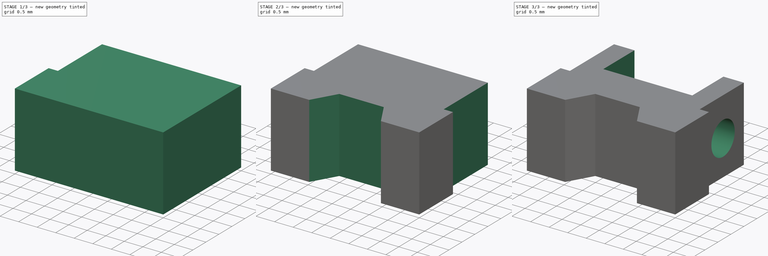
[diagram: build sequence overview — one tinted view per stage of 3, left to right]
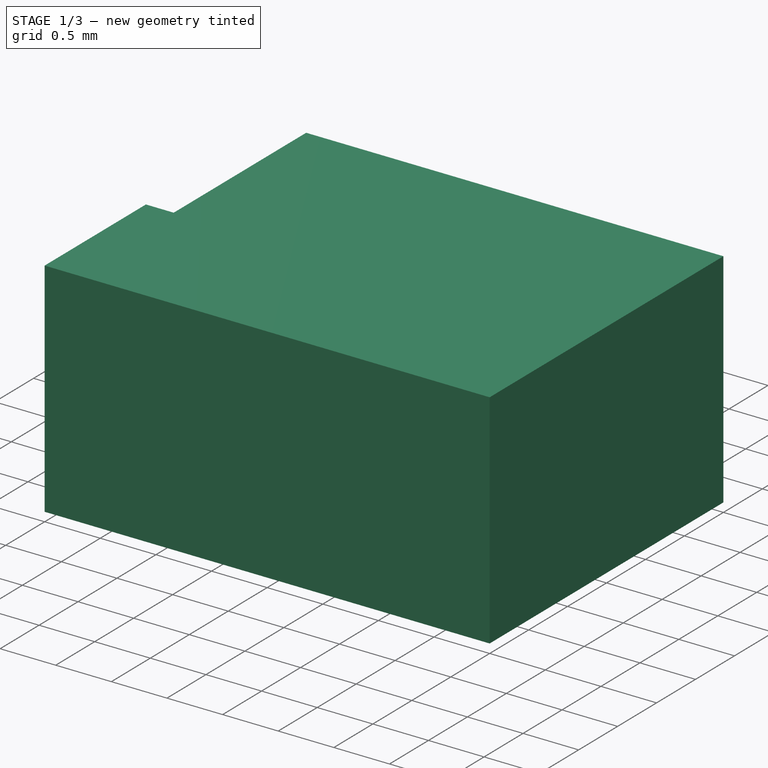
[diagram: stage 1 of 3 — iso view after this stage's code; geometry added in this stage tinted green]
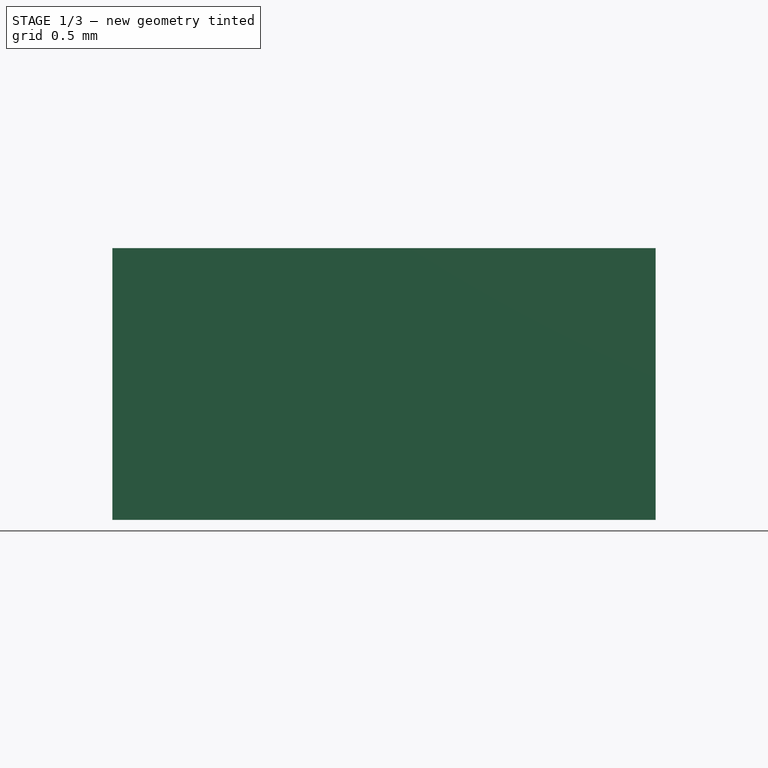
[diagram: stage 1 of 3 — front view after this stage's code; geometry added in this stage tinted green]
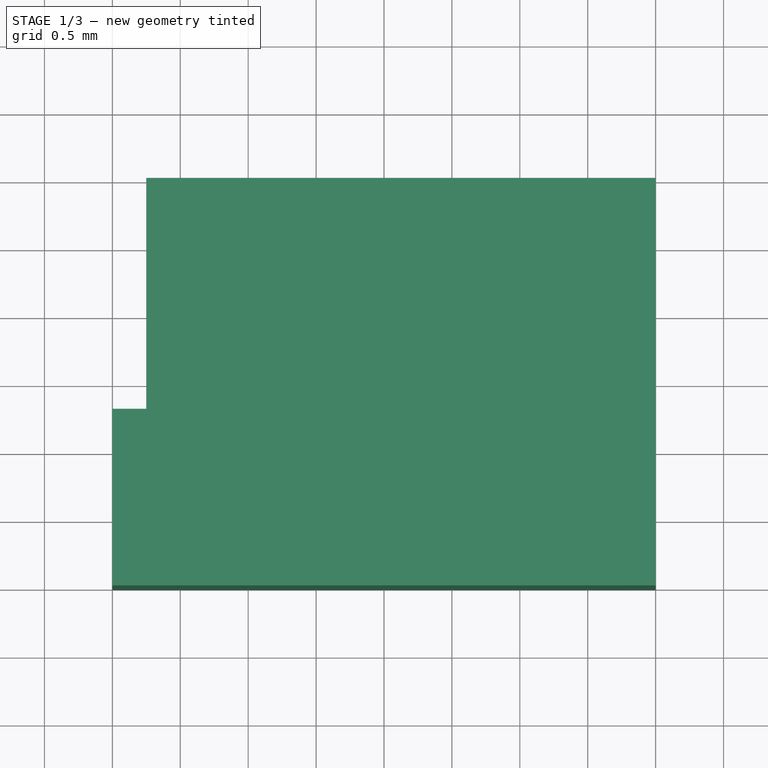
[diagram: stage 1 of 3 — top view after this stage's code; geometry added in this stage tinted green]
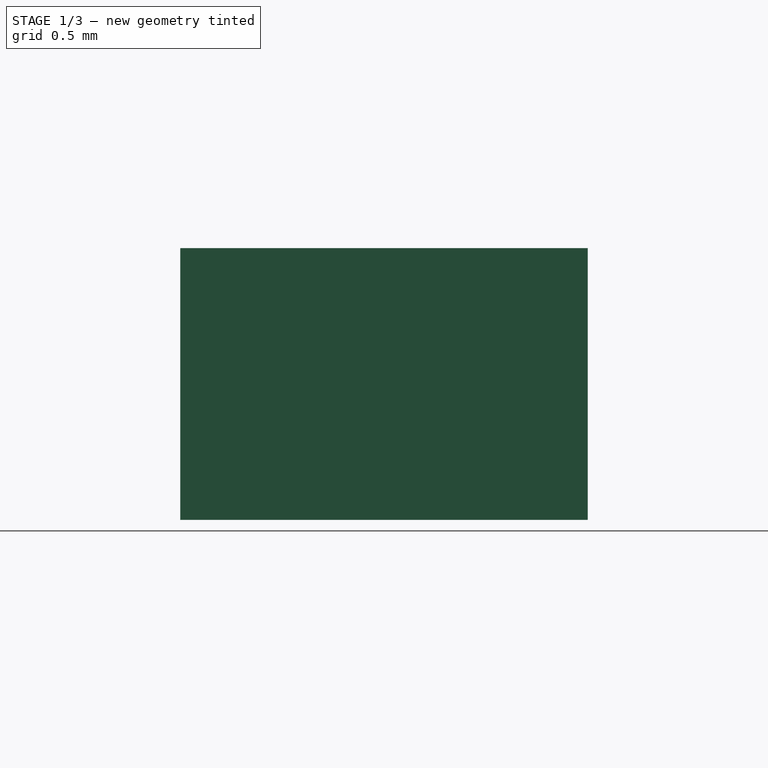
[diagram: stage 1 of 3 — right view after this stage's code; geometry added in this stage tinted green]
FCSTD DOCUMENT  (FreeCAD 0.17R13528 (Git))
Label: übungsgglbildersuchecadübungen
License: All rights reserved
LicenseURL: http://en.wikipedia.org/wiki/All_rights_reserved
objects: Sketcher::SketchObject×5, PartDesign::Pocket×4, PartDesign::AdditiveBox×1, PartDesign::SubtractivePrism×1, PartDesign::SubtractiveBox×1, PartDesign::Body×1
note: 20 computed .brp shape members not serialized (recipe doc carries the construction recipe); baked Part::Feature solids carry a one-line shape summary decoded from their .brp

FEATURE [PartDesign::AdditiveBox] Box
  AttacherType = Attacher::AttachEngine3D
  Height = 2
  Length = 4
  MapMode = 5
  Support = -> [XY_Plane]
  Width = 3
FEATURE [Sketcher::SketchObject] Sketch
  MapMode = 5
  Placement = pos=(0,0,0) rot=(0.57735,0.57735,0.57735;2.0944rad)
  Support = -> [YZ_Plane]
  sketch-geometry (4):
    g0: LineSegment StartX=1.3 StartY=0 StartZ=0 EndX=3 EndY=0 EndZ=0
    g1: LineSegment StartX=3 StartY=0 StartZ=0 EndX=3 EndY=2 EndZ=0
    g2: LineSegment StartX=3 StartY=2 StartZ=0 EndX=1.3 EndY=2 EndZ=0
    g3: LineSegment StartX=1.3 StartY=2 StartZ=0 EndX=1.3 EndY=0 EndZ=0
  constraints (12):
    c: Coincident(g0,g1)
    c: Coincident(g1,g2)
    c: Coincident(g2,g3)
    c: Coincident(g3,g0)
    c: Horizontal(g0)
    c: Horizontal(g2)
    c: Vertical(g1)
    c: Vertical(g3)
    c: DistanceX(g2,g2) = 1.7
    c: DistanceY(g3,g3) = 2
    c: DistanceX(g-1,g0) = 1.3
    c: DistanceY(g0) = 0
FEATURE [PartDesign::Pocket] Pocket
  BaseFeature = -> Box
  Length = 0.5
  Length2 = 100
  Midplane = true
  Profile = -> Sketch
  Type = 0
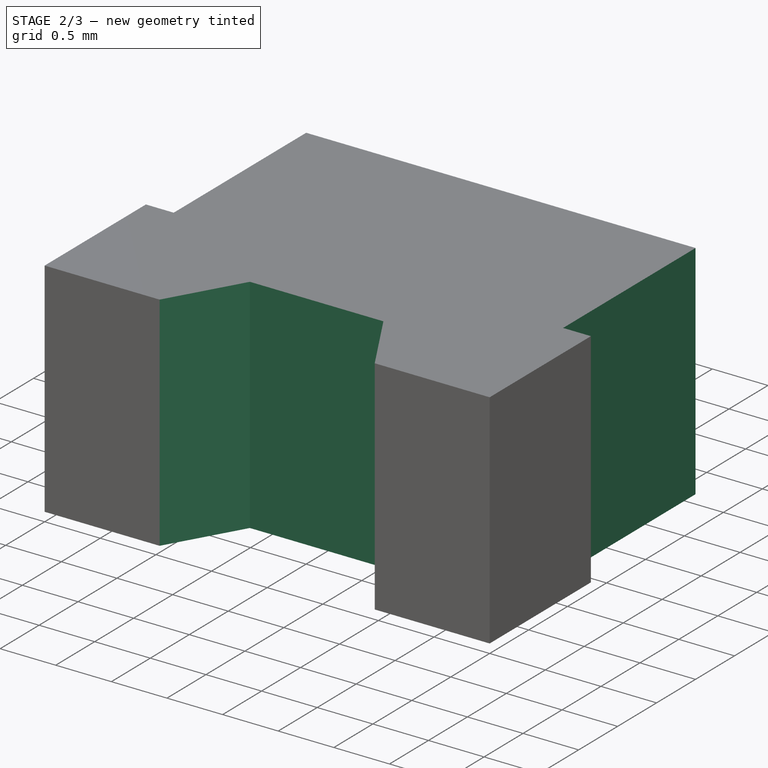
[diagram: stage 2 of 3 — iso view after this stage's code; geometry added in this stage tinted green]
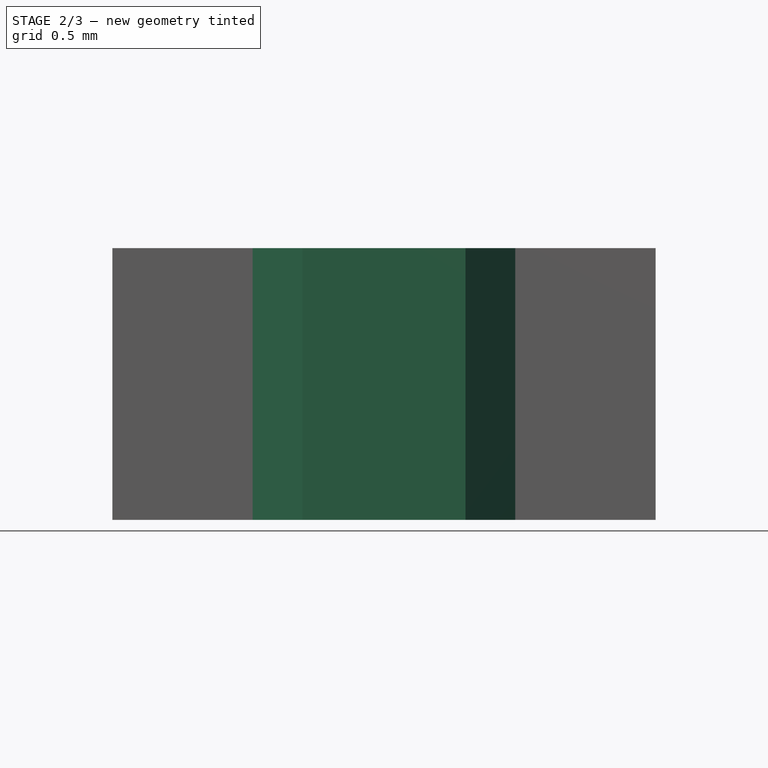
[diagram: stage 2 of 3 — front view after this stage's code; geometry added in this stage tinted green]
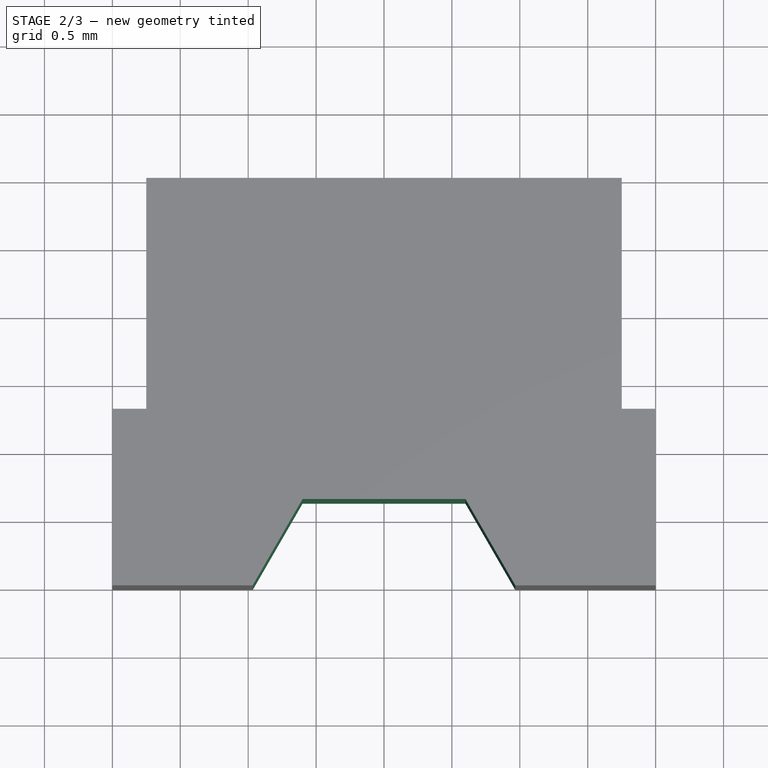
[diagram: stage 2 of 3 — top view after this stage's code; geometry added in this stage tinted green]
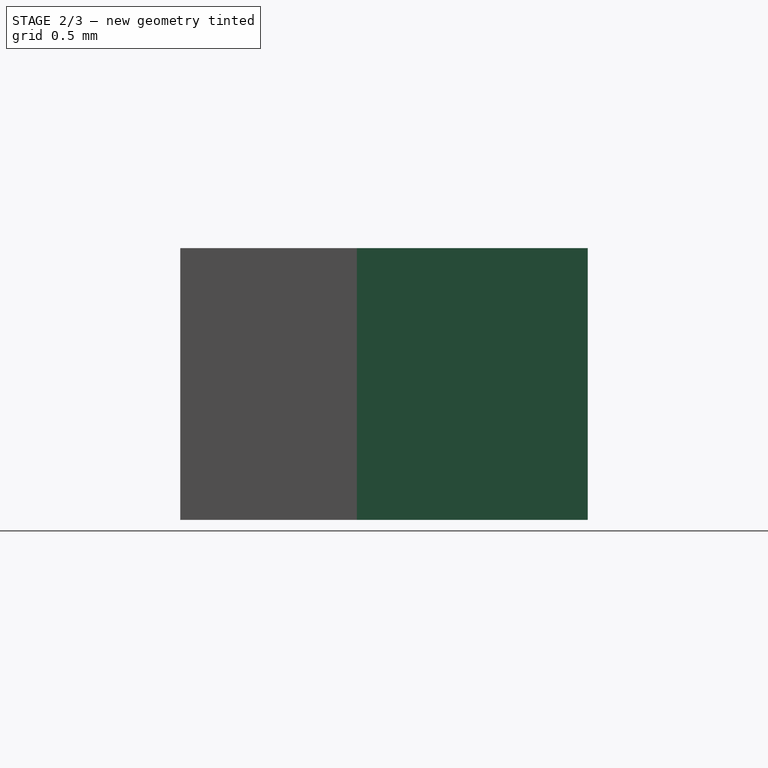
[diagram: stage 2 of 3 — right view after this stage's code; geometry added in this stage tinted green]
FEATURE [Sketcher::SketchObject] Sketch001
  MapMode = 5
  Placement = pos=(4,0,0) rot=(0.57735,0.57735,0.57735;2.0944rad)
  Support = -> [Pocket]
  sketch-geometry (4):
    g0: LineSegment StartX=1.3 StartY=2 StartZ=0 EndX=3 EndY=2 EndZ=0
    g1: LineSegment StartX=3 StartY=2 StartZ=0 EndX=3 EndY=0 EndZ=0
    g2: LineSegment StartX=3 StartY=0 StartZ=0 EndX=1.3 EndY=0 EndZ=0
    g3: LineSegment StartX=1.3 StartY=0 StartZ=0 EndX=1.3 EndY=2 EndZ=0
  constraints (12):
    c: Coincident(g0,g1)
    c: Coincident(g1,g2)
    c: Coincident(g2,g3)
    c: Coincident(g3,g0)
    c: Horizontal(g0)
    c: Horizontal(g2)
    c: Vertical(g1)
    c: Vertical(g3)
    c: DistanceX(g0,g0) = 1.7
    c: DistanceY(g3,g3) = 2
    c: DistanceY(g-1,g1) = 0
    c: DistanceX(g-1,g2) = 1.3
FEATURE [PartDesign::Pocket] Pocket001
  BaseFeature = -> Pocket
  Length = 0.5
  Length2 = 100
  Midplane = true
  Profile = -> Sketch001
  Type = 0
FEATURE [Sketcher::SketchObject] Sketch002
  MapMode = 5
  Support = -> [XY_Plane]
FEATURE [PartDesign::SubtractivePrism] Prism
  AttacherType = Attacher::AttachEngine3D
  AttachmentOffset = pos=(2,0.40392,-2) rot=(0,0,1;0rad)
  BaseFeature = -> Pocket001
  Circumradius = 1.2
  Height = 2
  MapMode = 5
  Placement = pos=(2,-0.40392,2) rot=(1,0,0;3.14159rad)
  Polygon = 6
  Support = -> [Pocket001]
FEATURE [Sketcher::SketchObject] Sketch003
  MapMode = 5
  Placement = pos=(3.75,-0.40392,2) rot=(0.57735,-0.57735,0.57735;4.18879rad)
  Support = -> [Prism]
  sketch-geometry (1):
    g0: Circle CenterX=2.15 CenterY=1 CenterZ=0 NormalX=0 NormalY=0 NormalZ=1 AngleXU=0 Radius=0.45
  constraints (3):
    c: Radius(g0) = 0.45
    c: DistanceX(g-1,g0) = 2.15
    c: DistanceY(g-1,g0) = 1
FEATURE [PartDesign::Pocket] Pocket002
  BaseFeature = -> Prism
  Length = 5
  Length2 = 100
  Placement = pos=(2,-0.40392,2) rot=(1,0,0;3.14159rad)
  Profile = -> Sketch003
  Type = 0
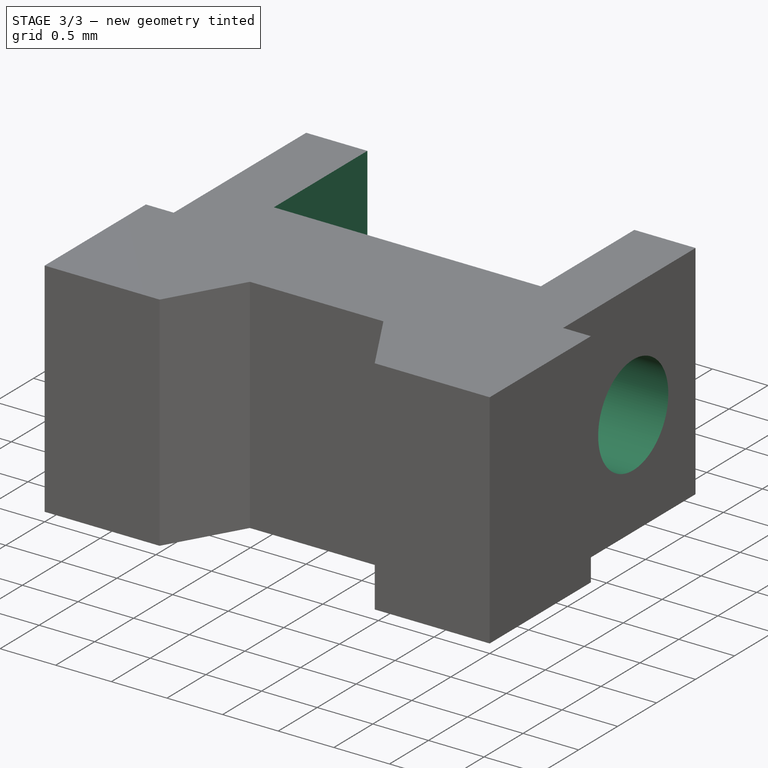
[diagram: stage 3 of 3 — iso view after this stage's code; geometry added in this stage tinted green]
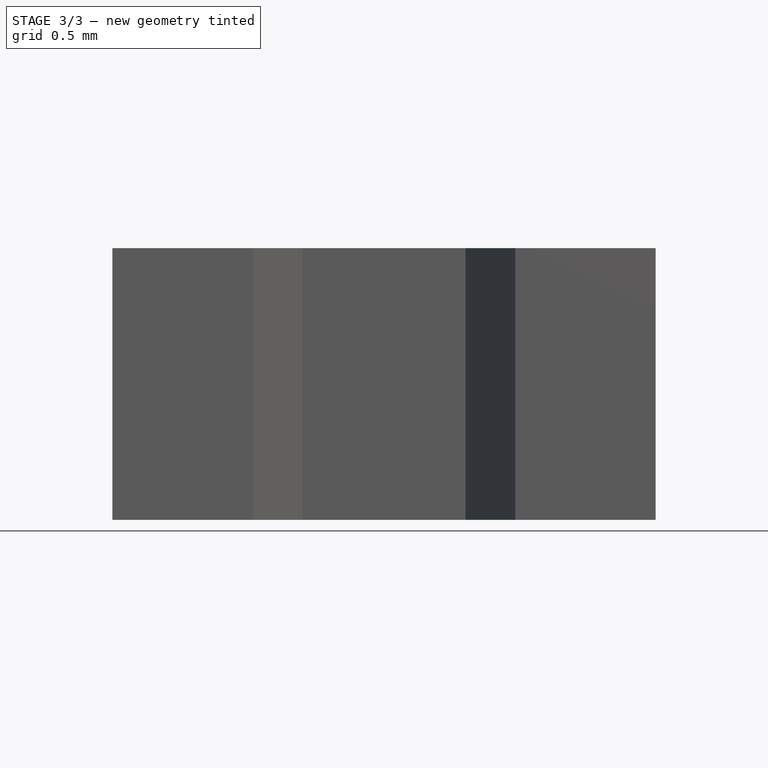
[diagram: stage 3 of 3 — front view after this stage's code; geometry added in this stage tinted green]
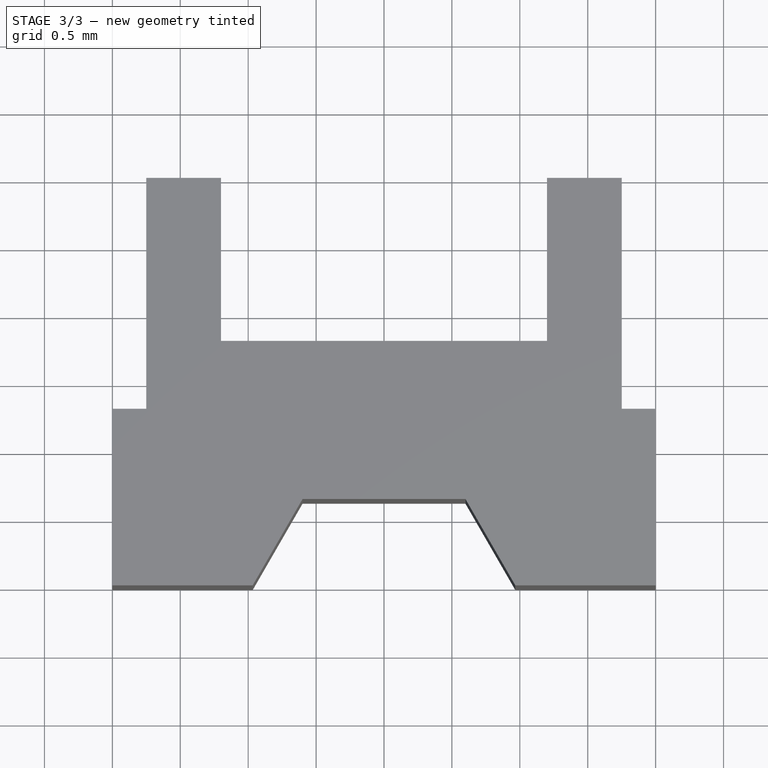
[diagram: stage 3 of 3 — top view after this stage's code; geometry added in this stage tinted green]
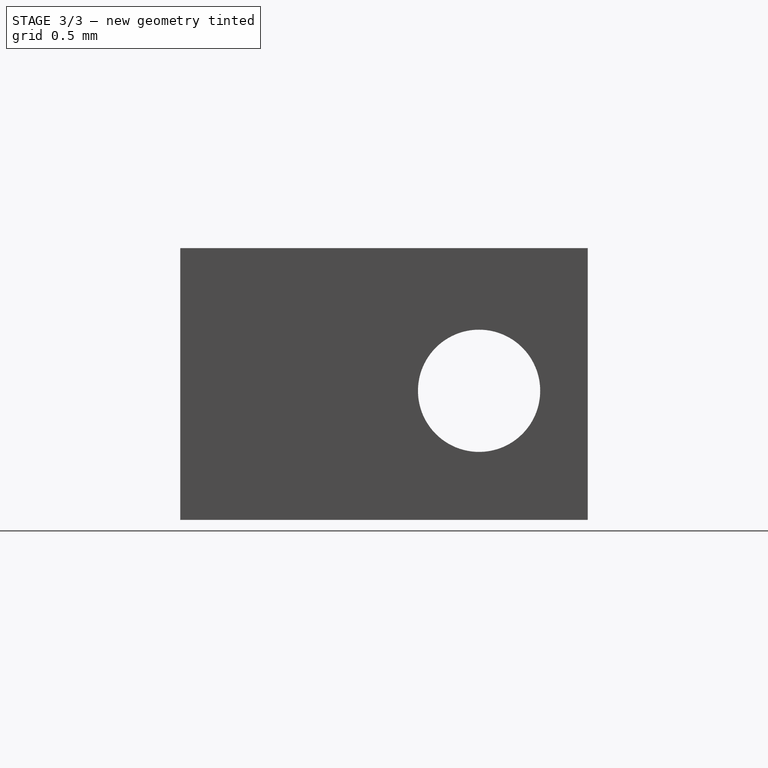
[diagram: stage 3 of 3 — right view after this stage's code; geometry added in this stage tinted green]
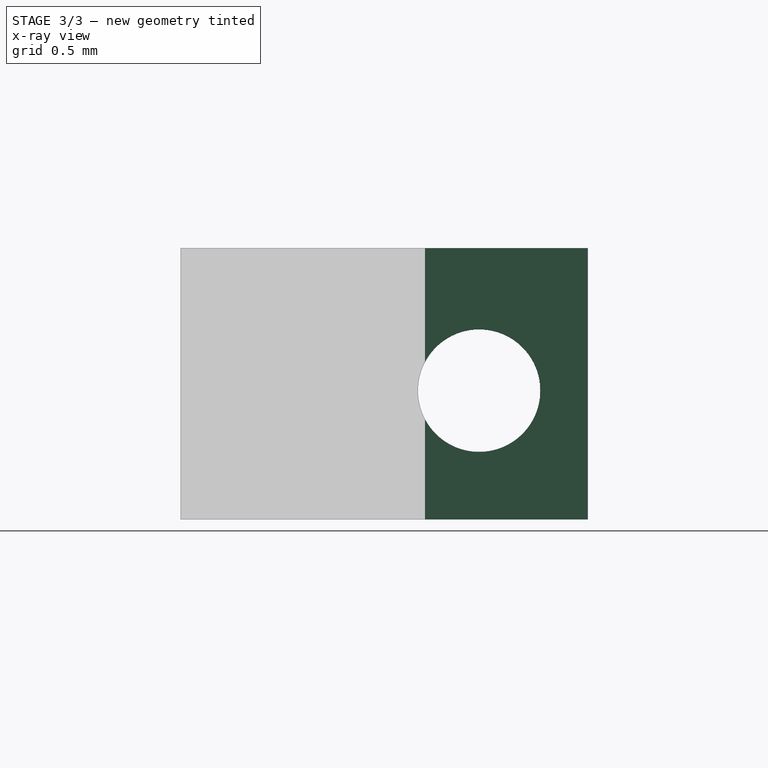
[diagram: stage 3 of 3 — x-ray composite at the right view; earlier geometry ghosted, this stage's added geometry solid]
FEATURE [PartDesign::SubtractiveBox] Box001
  AttacherType = Attacher::AttachEngine3D
  AttachmentOffset = pos=(0.8,1.8,0) rot=(0,0,1;0rad)
  BaseFeature = -> Pocket002
  Height = 2
  Length = 2.4
  MapMode = 5
  Placement = pos=(0.8,1.8,0) rot=(0,0,1;0rad)
  Support = -> [XY_Plane]
  Width = 1.2
FEATURE [Sketcher::SketchObject] Sketch004
  MapMode = 5
  Placement = pos=(0,0,0) rot=(0.57735,0.57735,0.57735;2.0944rad)
  Support = -> [YZ_Plane]
  sketch-geometry (1):
    g0: Circle CenterX=2.2 CenterY=0.95 CenterZ=0 NormalX=0 NormalY=0 NormalZ=1 AngleXU=0 Radius=0.45
  constraints (3):
    c: Radius(g0) = 0.45
    c: DistanceY(g-1,g0) = 0.95
    c: DistanceX(g-1,g0) = 2.2
FEATURE [PartDesign::Pocket] Pocket003
  BaseFeature = -> Box001
  Length = 5
  Length2 = 100
  Midplane = true
  Placement = pos=(0.8,1.8,0) rot=(0,0,1;0rad)
  Profile = -> Sketch004
  Type = 1
FEATURE [PartDesign::Body] Body
  Group = -> [Box,Sketch,Pocket,Sketch001,Pocket001,Sketch002,Prism,Sketch003,Pocket002,Box001,Sketch004,Pocket003]
  Origin = -> Origin
  Tip = -> Pocket003
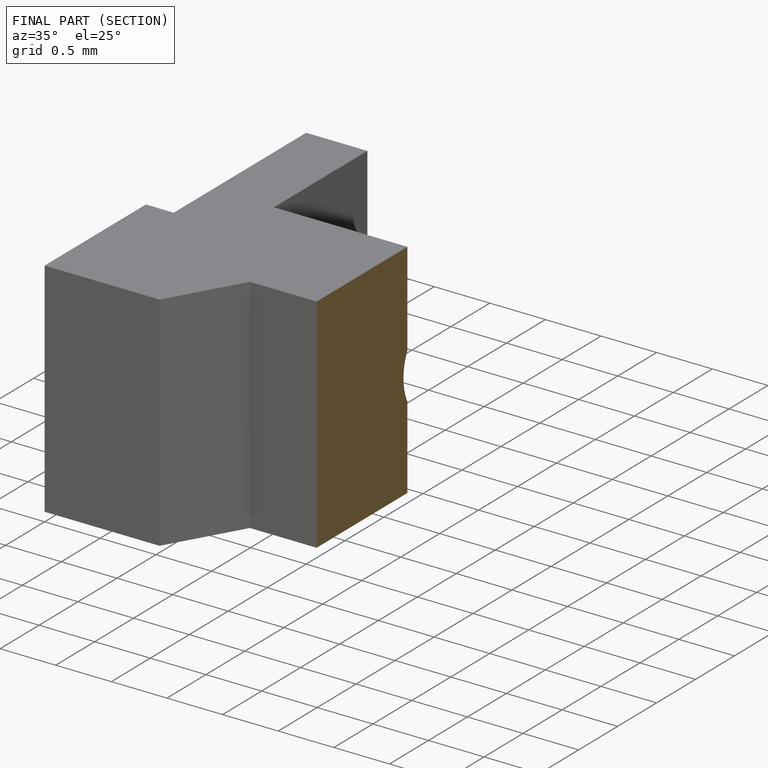
[diagram: finished part — half-section view (interior)]
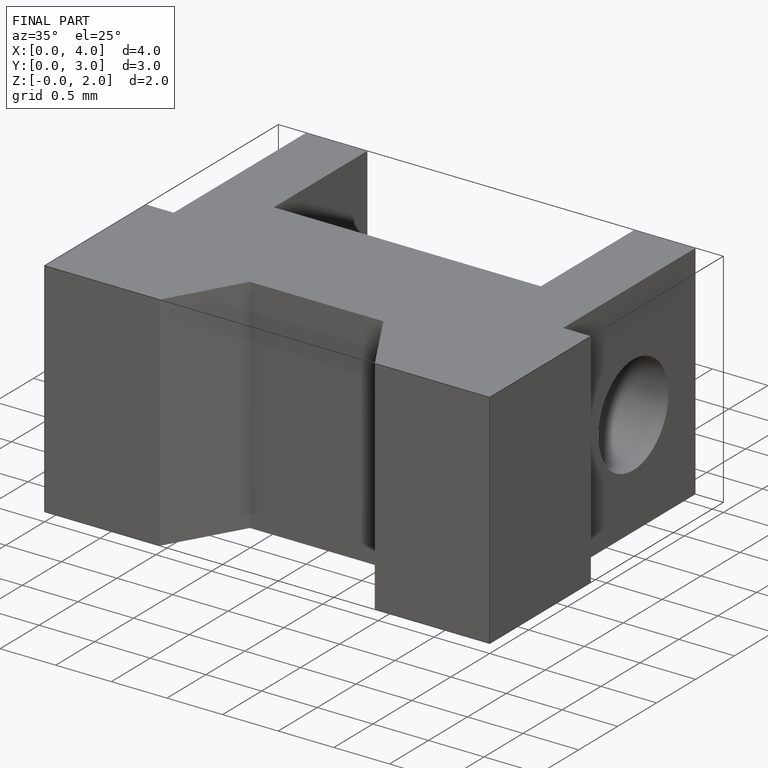
[diagram: finished part — iso view with bounding-box wireframe]
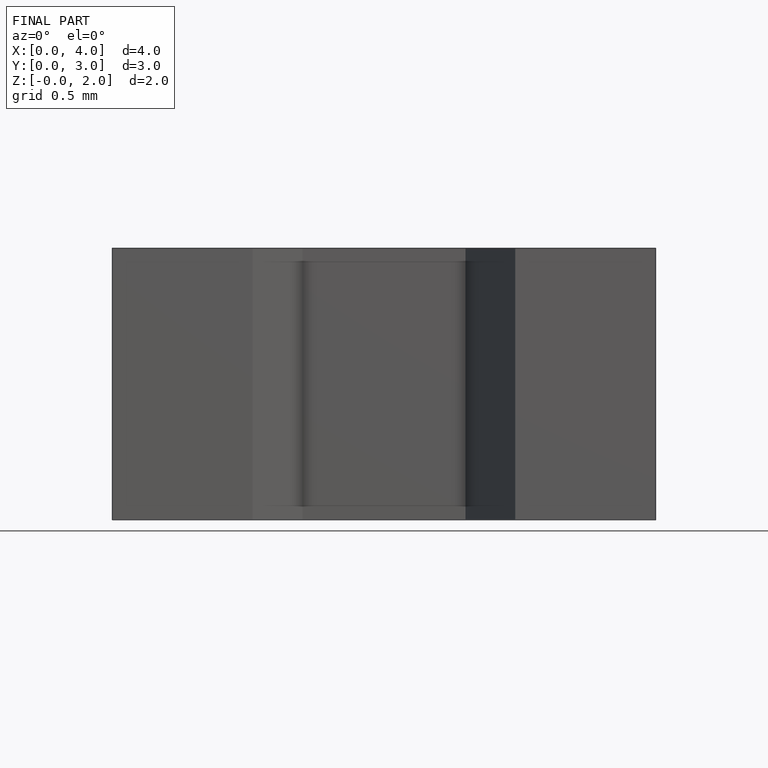
[diagram: finished part — front view with bounding-box wireframe]
